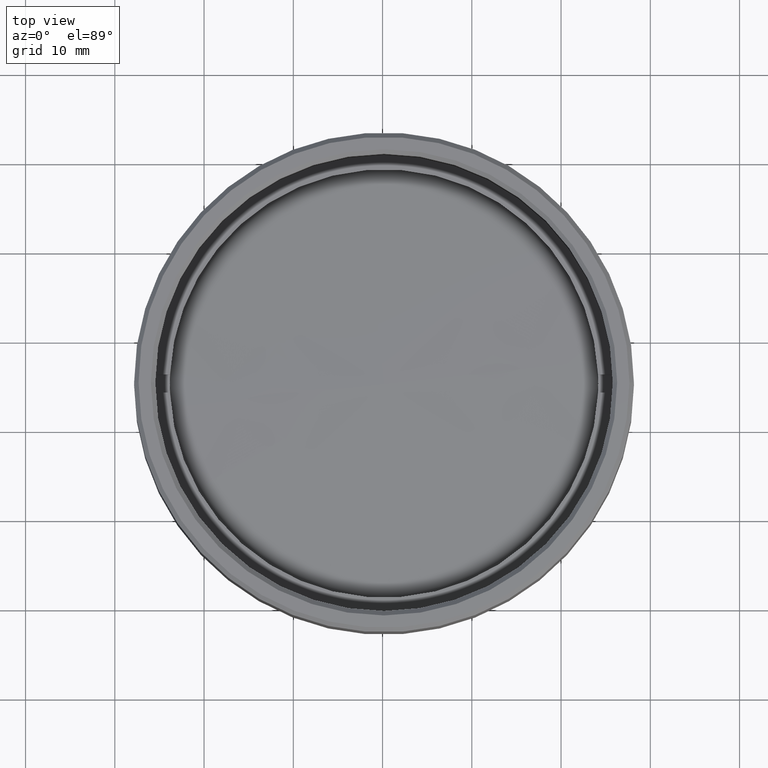
[diagram: clean part render]
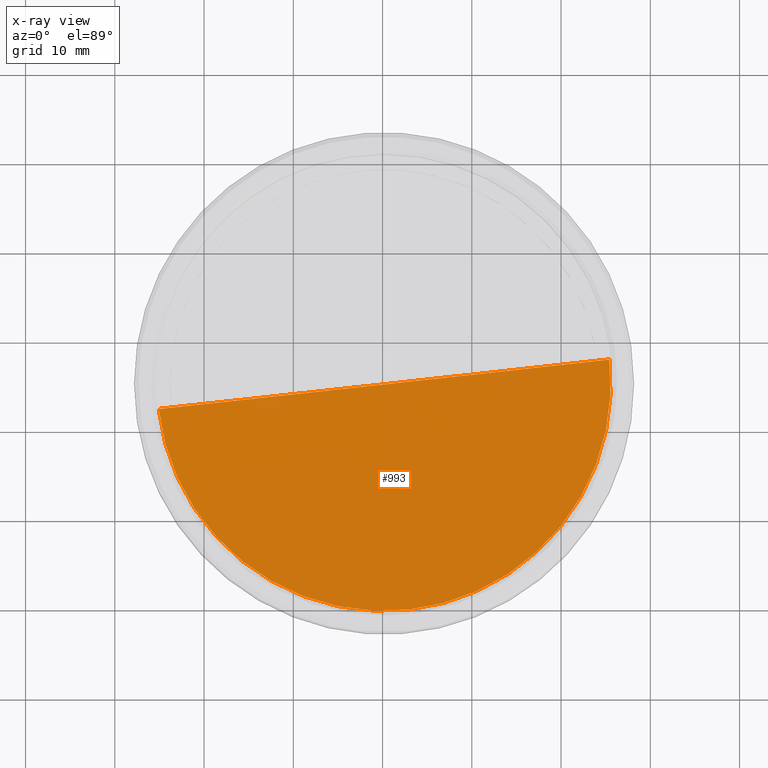
[diagram: x-ray — body ghosted, one internal face saturated and labeled with its STEP entity id]
A machine part, top view, then the same camera in x-ray: the body is ghosted and one INTERNAL B-rep face — a face not visible from any outside direction — is saturated and labeled: STEP entity #993.
In plain terms, the highlighted spherical surface has radius 398.1 mm.
Its self-contained STEP definition (entity closure, byte-faithful):
#192 = DIRECTION ( 'NONE',  ( -1.224646799147351975E-16, 1.000000000000000000, -1.874699728327319615E-33 ) ) ;
#284 = EDGE_CURVE ( 'NONE', #990, #617, #888, .T. ) ;
#299 = DIRECTION ( 'NONE',  ( 1.707404996040164820E-17, 0.000000000000000000, -1.000000000000000000 ) ) ;
#363 = CARTESIAN_POINT ( 'NONE',  ( 25.39999999999949765, 3.110602869834214940E-15, -3.188874749847525170 ) ) ;
#377 = AXIS2_PLACEMENT_3D ( 'NONE', #968, #299, #821 ) ;
#389 = ORIENTED_EDGE ( 'NONE', *, *, #284, .T. ) ;
#617 = VERTEX_POINT ( 'NONE', #856 ) ;
#722 = CIRCLE ( 'NONE', #1008, 398.1000000000000227 ) ;
#737 = SPHERICAL_SURFACE ( 'NONE', #1252, 398.1000000000000227 ) ;
#800 = EDGE_LOOP ( 'NONE', ( #805, #389 ) ) ;
#805 = ORIENTED_EDGE ( 'NONE', *, *, #861, .F. ) ;
#821 = DIRECTION ( 'NONE',  ( -1.000000000000000000, 0.000000000000000000, -1.707404996040164512E-17 ) ) ;
#856 = CARTESIAN_POINT ( 'NONE',  ( -25.39999999999949765, 0.000000000000000000, -3.188874749847525170 ) ) ;
#861 = EDGE_CURVE ( 'NONE', #990, #617, #722, .T. ) ;
#888 = CIRCLE ( 'NONE', #377, 25.39999999999999858 ) ;
#919 = CARTESIAN_POINT ( 'NONE',  ( 0.000000000000000000, 0.000000000000000000, 394.1000000000000227 ) ) ;
#968 = CARTESIAN_POINT ( 'NONE',  ( 4.881556569103229936E-17, 0.000000000000000000, -3.188874749847519841 ) ) ;
#990 = VERTEX_POINT ( 'NONE', #363 ) ;
#993 = ADVANCED_FACE ( 'NONE', ( #1558 ), #737, .T. ) ;
#1008 = AXIS2_PLACEMENT_3D ( 'NONE', #1097, #192, #1535 ) ;
#1097 = CARTESIAN_POINT ( 'NONE',  ( 0.000000000000000000, 0.000000000000000000, 394.1000000000000227 ) ) ;
#1252 = AXIS2_PLACEMENT_3D ( 'NONE', #919, #1575, #1301 ) ;
#1301 = DIRECTION ( 'NONE',  ( -1.000000000000000000, 0.000000000000000000, 0.000000000000000000 ) ) ;
#1535 = DIRECTION ( 'NONE',  ( -1.000000000000000000, -1.224646799147351728E-16, 0.000000000000000000 ) ) ;
#1558 = FACE_OUTER_BOUND ( 'NONE', #800, .T. ) ;
#1575 = DIRECTION ( 'NONE',  ( 0.000000000000000000, -0.000000000000000000, 1.000000000000000000 ) ) ;